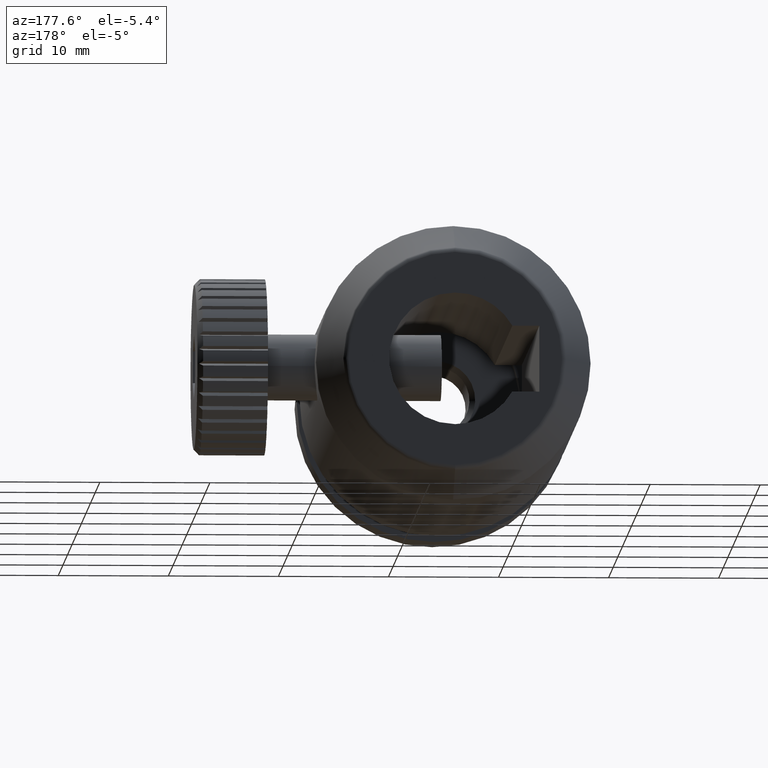
[diagram: clean part render]
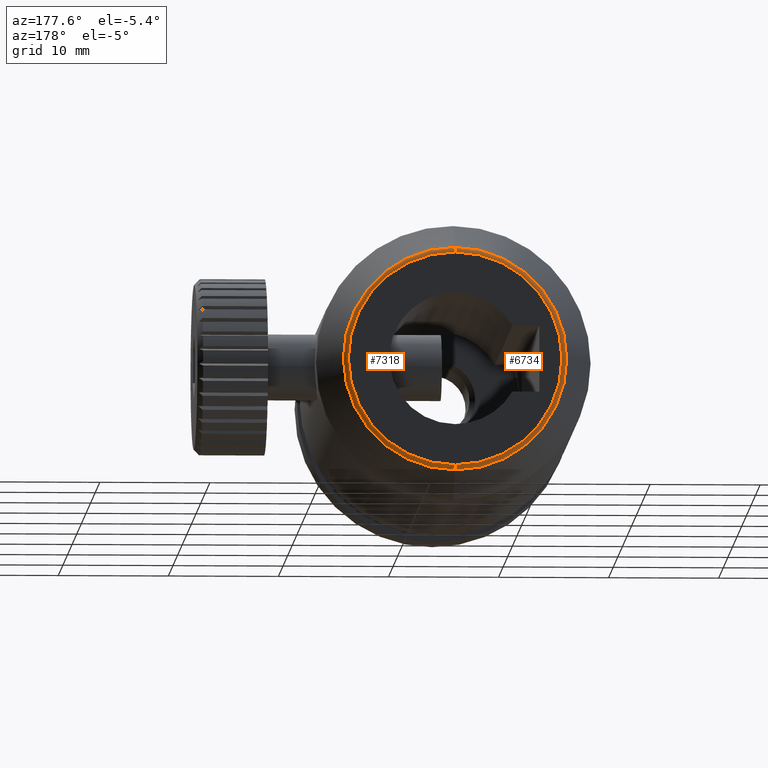
[diagram: same view with one multi-face feature highlighted, each face labeled with its STEP entity id]
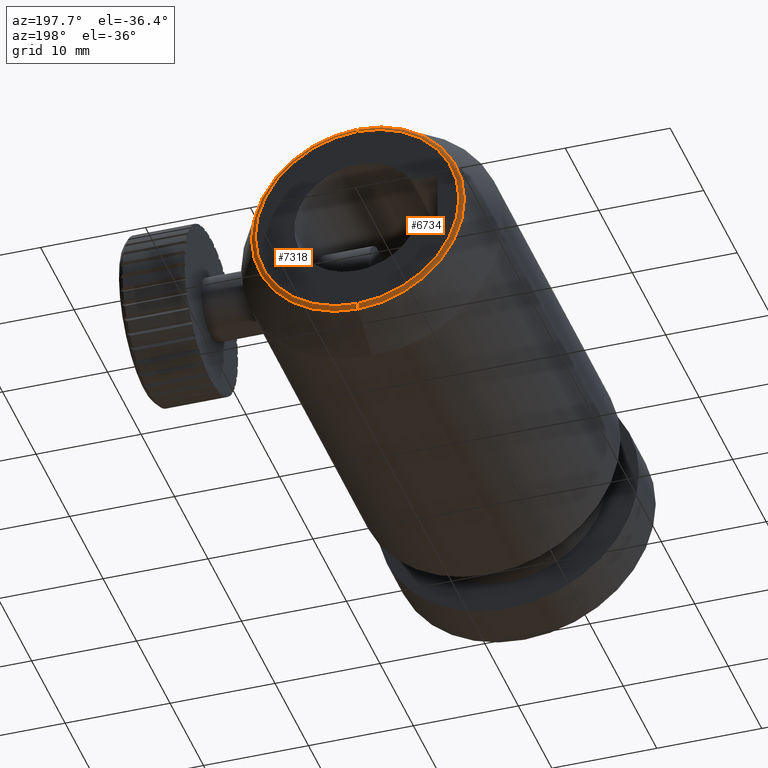
[diagram: same view with one multi-face feature highlighted, each face labeled with its STEP entity id]
A machine part, auxiliary view. The highlighted faces form ONE feature: a constant-radius fillet chain: 2 tangent blend faces with common blend radius 0.5 mm. The faces share edges in the B-rep.
A second angle (auxiliary view) of the same feature is appended — it is thin or edge-on in the first view.
Their STEP definitions:
[1] entity #7318 (Torus):
#168 = VERTEX_POINT ( 'NONE', #5837 ) ;
#317 = DIRECTION ( 'NONE',  ( -0.0000000000000000000, -1.000000000000000000, -0.0000000000000000000 ) ) ;
#1036 = DIRECTION ( 'NONE',  ( 0.0000000000000000000, 1.000000000000000000, 0.0000000000000000000 ) ) ;
#1124 = VERTEX_POINT ( 'NONE', #4044 ) ;
#1224 = VERTEX_POINT ( 'NONE', #2987 ) ;
#1248 = CIRCLE ( 'NONE', #3715, 0.5000000000000004441 ) ;
#1680 = CARTESIAN_POINT ( 'NONE',  ( -3.204778668925408525, 37.68638794039016204, -9.705798325500706980 ) ) ;
#1851 = EDGE_CURVE ( 'NONE', #168, #1224, #9051, .T. ) ;
#1862 = CARTESIAN_POINT ( 'NONE',  ( -3.204778668925409857, 37.68638794039016204, 9.705798325500706980 ) ) ;
#2411 = DIRECTION ( 'NONE',  ( 0.0000000000000000000, 0.0000000000000000000, 1.000000000000000000 ) ) ;
#2435 = CARTESIAN_POINT ( 'NONE',  ( -3.204778668925409857, 38.18638794039016204, -7.703719777548943412E-31 ) ) ;
#2987 = CARTESIAN_POINT ( 'NONE',  ( -3.204778668925408525, 38.18638794039016204, -9.705798325500706980 ) ) ;
#3141 = AXIS2_PLACEMENT_3D ( 'NONE', #1680, #8032, #5597 ) ;
#3220 = ORIENTED_EDGE ( 'NONE', *, *, #3423, .F. ) ;
#3423 = EDGE_CURVE ( 'NONE', #8020, #168, #1248, .T. ) ;
#3715 = AXIS2_PLACEMENT_3D ( 'NONE', #1862, #8241, #7484 ) ;
#3787 = TOROIDAL_SURFACE ( 'NONE', #7649, 9.705798325500706980, 0.5000000000000000000 ) ;
#3864 = FACE_OUTER_BOUND ( 'NONE', #4876, .T. ) ;
#4044 = CARTESIAN_POINT ( 'NONE',  ( -3.204778668925408525, 37.92920940597948487, -10.14287696356147528 ) ) ;
#4573 = AXIS2_PLACEMENT_3D ( 'NONE', #5697, #317, #5187 ) ;
#4684 = DIRECTION ( 'NONE',  ( 0.0000000000000000000, 0.0000000000000000000, 1.000000000000000000 ) ) ;
#4786 = CARTESIAN_POINT ( 'NONE',  ( -3.204778668925409857, 37.92920940597948487, 10.14287696356147528 ) ) ;
#4876 = EDGE_LOOP ( 'NONE', ( #6189, #6244, #6134, #3220 ) ) ;
#5187 = DIRECTION ( 'NONE',  ( 0.0000000000000000000, 0.0000000000000000000, 1.000000000000000000 ) ) ;
#5353 = CIRCLE ( 'NONE', #3141, 0.5000000000000004441 ) ;
#5597 = DIRECTION ( 'NONE',  ( 0.0000000000000000000, 0.0000000000000000000, -1.000000000000000000 ) ) ;
#5697 = CARTESIAN_POINT ( 'NONE',  ( -3.204778668925409857, 37.92920940597948487, -7.703719777548943412E-31 ) ) ;
#5837 = CARTESIAN_POINT ( 'NONE',  ( -3.204778668925409857, 38.18638794039016204, 9.705798325500706980 ) ) ;
#5889 = DIRECTION ( 'NONE',  ( 0.0000000000000000000, 1.000000000000000000, 0.0000000000000000000 ) ) ;
#6012 = CARTESIAN_POINT ( 'NONE',  ( -3.204778668925409857, 37.68638794039016204, -7.703719777548943412E-31 ) ) ;
#6134 = ORIENTED_EDGE ( 'NONE', *, *, #1851, .F. ) ;
#6189 = ORIENTED_EDGE ( 'NONE', *, *, #8301, .F. ) ;
#6244 = ORIENTED_EDGE ( 'NONE', *, *, #8764, .T. ) ;
#7318 = ADVANCED_FACE ( 'NONE', ( #3864 ), #3787, .T. ) ;
#7484 = DIRECTION ( 'NONE',  ( 0.0000000000000000000, 0.0000000000000000000, 1.000000000000000000 ) ) ;
#7649 = AXIS2_PLACEMENT_3D ( 'NONE', #6012, #1036, #2411 ) ;
#8020 = VERTEX_POINT ( 'NONE', #4786 ) ;
#8032 = DIRECTION ( 'NONE',  ( 1.000000000000000000, -0.0000000000000000000, 1.224646799147353207E-16 ) ) ;
#8241 = DIRECTION ( 'NONE',  ( -1.000000000000000000, 0.0000000000000000000, 0.0000000000000000000 ) ) ;
#8301 = EDGE_CURVE ( 'NONE', #1124, #8020, #8996, .T. ) ;
#8307 = AXIS2_PLACEMENT_3D ( 'NONE', #2435, #5889, #4684 ) ;
#8764 = EDGE_CURVE ( 'NONE', #1124, #1224, #5353, .T. ) ;
#8996 = CIRCLE ( 'NONE', #4573, 10.14287696356147883 ) ;
#9051 = CIRCLE ( 'NONE', #8307, 9.705798325500706980 ) ;
[2] entity #6734 (Torus):
#168 = VERTEX_POINT ( 'NONE', #5837 ) ;
#353 = DIRECTION ( 'NONE',  ( 0.0000000000000000000, 1.000000000000000000, 0.0000000000000000000 ) ) ;
#855 = AXIS2_PLACEMENT_3D ( 'NONE', #1522, #7922, #3617 ) ;
#932 = ORIENTED_EDGE ( 'NONE', *, *, #3423, .T. ) ;
#1124 = VERTEX_POINT ( 'NONE', #4044 ) ;
#1224 = VERTEX_POINT ( 'NONE', #2987 ) ;
#1248 = CIRCLE ( 'NONE', #3715, 0.5000000000000004441 ) ;
#1522 = CARTESIAN_POINT ( 'NONE',  ( -3.204778668925409857, 37.92920940597948487, -7.703719777548943412E-31 ) ) ;
#1680 = CARTESIAN_POINT ( 'NONE',  ( -3.204778668925408525, 37.68638794039016204, -9.705798325500706980 ) ) ;
#1862 = CARTESIAN_POINT ( 'NONE',  ( -3.204778668925409857, 37.68638794039016204, 9.705798325500706980 ) ) ;
#1889 = AXIS2_PLACEMENT_3D ( 'NONE', #3991, #2628, #9030 ) ;
#2225 = ORIENTED_EDGE ( 'NONE', *, *, #4910, .F. ) ;
#2628 = DIRECTION ( 'NONE',  ( 0.0000000000000000000, 1.000000000000000000, 0.0000000000000000000 ) ) ;
#2987 = CARTESIAN_POINT ( 'NONE',  ( -3.204778668925408525, 38.18638794039016204, -9.705798325500706980 ) ) ;
#3141 = AXIS2_PLACEMENT_3D ( 'NONE', #1680, #8032, #5597 ) ;
#3239 = CARTESIAN_POINT ( 'NONE',  ( -3.204778668925409857, 37.68638794039016204, -7.703719777548943412E-31 ) ) ;
#3423 = EDGE_CURVE ( 'NONE', #8020, #168, #1248, .T. ) ;
#3617 = DIRECTION ( 'NONE',  ( 0.0000000000000000000, 0.0000000000000000000, 1.000000000000000000 ) ) ;
#3715 = AXIS2_PLACEMENT_3D ( 'NONE', #1862, #8241, #7484 ) ;
#3991 = CARTESIAN_POINT ( 'NONE',  ( -3.204778668925409857, 38.18638794039016204, -7.703719777548943412E-31 ) ) ;
#4044 = CARTESIAN_POINT ( 'NONE',  ( -3.204778668925408525, 37.92920940597948487, -10.14287696356147528 ) ) ;
#4759 = FACE_OUTER_BOUND ( 'NONE', #8561, .T. ) ;
#4786 = CARTESIAN_POINT ( 'NONE',  ( -3.204778668925409857, 37.92920940597948487, 10.14287696356147528 ) ) ;
#4910 = EDGE_CURVE ( 'NONE', #1224, #168, #5408, .T. ) ;
#5353 = CIRCLE ( 'NONE', #3141, 0.5000000000000004441 ) ;
#5408 = CIRCLE ( 'NONE', #1889, 9.705798325500706980 ) ;
#5589 = EDGE_CURVE ( 'NONE', #8020, #1124, #7767, .T. ) ;
#5597 = DIRECTION ( 'NONE',  ( 0.0000000000000000000, 0.0000000000000000000, -1.000000000000000000 ) ) ;
#5837 = CARTESIAN_POINT ( 'NONE',  ( -3.204778668925409857, 38.18638794039016204, 9.705798325500706980 ) ) ;
#6314 = AXIS2_PLACEMENT_3D ( 'NONE', #3239, #353, #8123 ) ;
#6734 = ADVANCED_FACE ( 'NONE', ( #4759 ), #9096, .T. ) ;
#7484 = DIRECTION ( 'NONE',  ( 0.0000000000000000000, 0.0000000000000000000, 1.000000000000000000 ) ) ;
#7767 = CIRCLE ( 'NONE', #855, 10.14287696356147883 ) ;
#7897 = ORIENTED_EDGE ( 'NONE', *, *, #5589, .F. ) ;
#7922 = DIRECTION ( 'NONE',  ( -0.0000000000000000000, -1.000000000000000000, -0.0000000000000000000 ) ) ;
#8020 = VERTEX_POINT ( 'NONE', #4786 ) ;
#8032 = DIRECTION ( 'NONE',  ( 1.000000000000000000, -0.0000000000000000000, 1.224646799147353207E-16 ) ) ;
#8123 = DIRECTION ( 'NONE',  ( 0.0000000000000000000, 0.0000000000000000000, 1.000000000000000000 ) ) ;
#8241 = DIRECTION ( 'NONE',  ( -1.000000000000000000, 0.0000000000000000000, 0.0000000000000000000 ) ) ;
#8305 = ORIENTED_EDGE ( 'NONE', *, *, #8764, .F. ) ;
#8561 = EDGE_LOOP ( 'NONE', ( #8305, #7897, #932, #2225 ) ) ;
#8764 = EDGE_CURVE ( 'NONE', #1124, #1224, #5353, .T. ) ;
#9030 = DIRECTION ( 'NONE',  ( 0.0000000000000000000, 0.0000000000000000000, 1.000000000000000000 ) ) ;
#9096 = TOROIDAL_SURFACE ( 'NONE', #6314, 9.705798325500706980, 0.5000000000000000000 ) ;